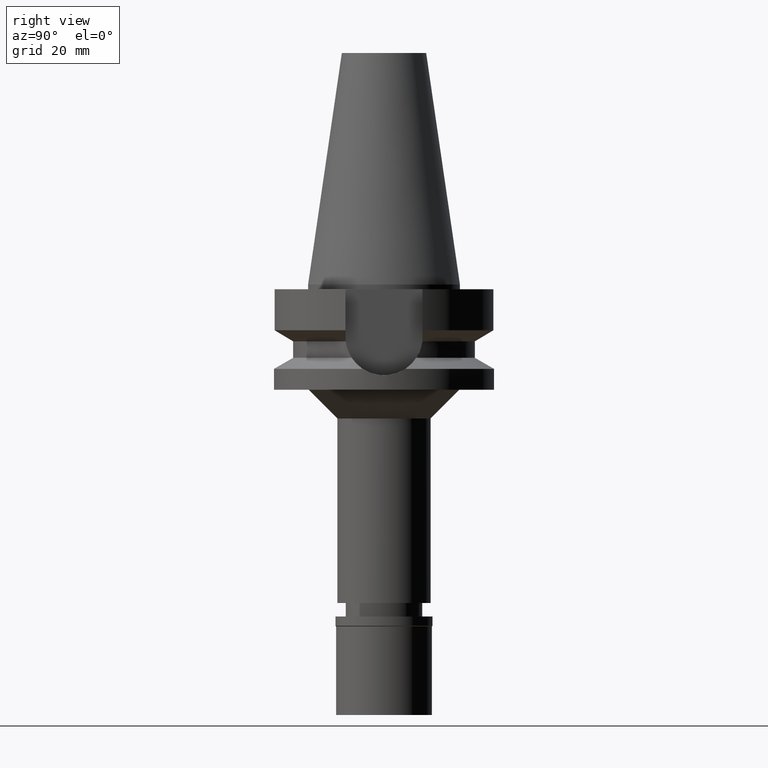
[diagram: clean part render]
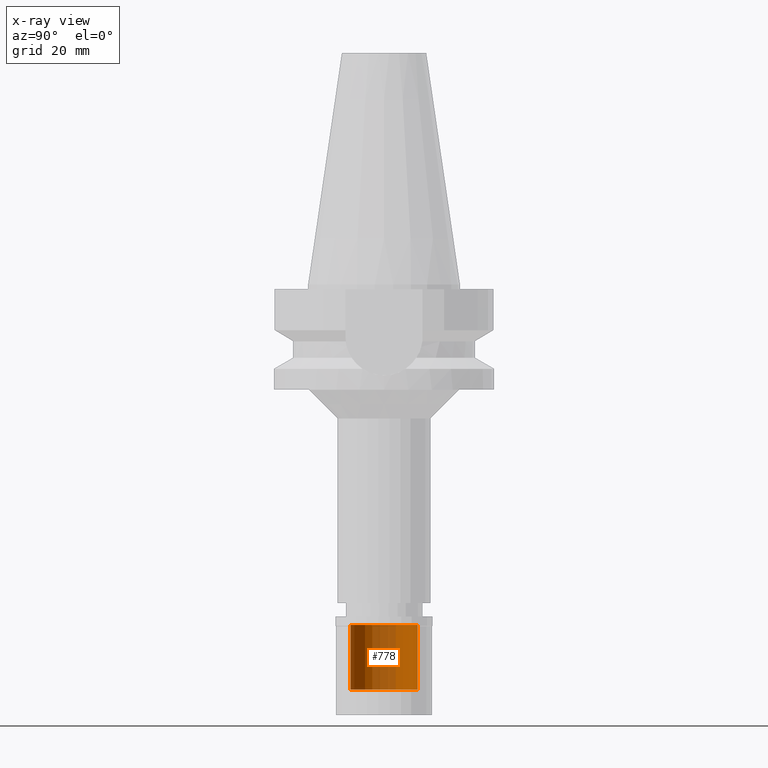
[diagram: x-ray — body ghosted, one internal face saturated and labeled with its STEP entity id]
A machine part, right view, then the same camera in x-ray: the body is ghosted and one INTERNAL B-rep face — a face not visible from any outside direction — is saturated and labeled: STEP entity #778.
In plain terms, the highlighted cylindrical surface (edge-blend (fillet) strip) has radius 7 mm, axis along (0, 0, -1).
Its self-contained STEP definition (entity closure, byte-faithful):
#120 = ORIENTED_EDGE ( 'NONE', *, *, #1396, .T. ) ;
#159 = CARTESIAN_POINT ( 'NONE',  ( 0.0000000000000000000, -7.000000000000000000, -15.29999999999999893 ) ) ;
#304 = ORIENTED_EDGE ( 'NONE', *, *, #1766, .T. ) ;
#490 = AXIS2_PLACEMENT_3D ( 'NONE', #887, #595, #645 ) ;
#521 = EDGE_CURVE ( 'NONE', #2634, #819, #803, .T. ) ;
#540 = CARTESIAN_POINT ( 'NONE',  ( 0.0000000000000000000, 7.000000000000000000, -15.29999999999999893 ) ) ;
#558 = CYLINDRICAL_SURFACE ( 'NONE', #589, 7.000000000000000000 ) ;
#589 = AXIS2_PLACEMENT_3D ( 'NONE', #1295, #1060, #834 ) ;
#595 = DIRECTION ( 'NONE',  ( 0.0000000000000000000, 0.0000000000000000000, 1.000000000000000000 ) ) ;
#645 = DIRECTION ( 'NONE',  ( 0.0000000000000000000, 1.000000000000000000, 0.0000000000000000000 ) ) ;
#760 = CARTESIAN_POINT ( 'NONE',  ( 0.0000000000000000000, -7.000000000000000000, -15.29999999999999893 ) ) ;
#778 = ADVANCED_FACE ( 'NONE', ( #1309 ), #558, .F. ) ;
#803 = LINE ( 'NONE', #540, #1167 ) ;
#819 = VERTEX_POINT ( 'NONE', #1517 ) ;
#834 = DIRECTION ( 'NONE',  ( 0.0000000000000000000, -1.000000000000000000, 0.0000000000000000000 ) ) ;
#887 = CARTESIAN_POINT ( 'NONE',  ( 0.0000000000000000000, 0.0000000000000000000, -1.800000000000000044 ) ) ;
#916 = DIRECTION ( 'NONE',  ( 0.0000000000000000000, 0.0000000000000000000, -1.000000000000000000 ) ) ;
#1012 = CARTESIAN_POINT ( 'NONE',  ( 0.0000000000000000000, -7.000000000000000000, -1.800000000000000044 ) ) ;
#1014 = AXIS2_PLACEMENT_3D ( 'NONE', #3063, #916, #2821 ) ;
#1060 = DIRECTION ( 'NONE',  ( 0.0000000000000000000, 0.0000000000000000000, -1.000000000000000000 ) ) ;
#1167 = VECTOR ( 'NONE', #2912, 1000.000000000000000 ) ;
#1234 = DIRECTION ( 'NONE',  ( 0.0000000000000000000, 0.0000000000000000000, 1.000000000000000000 ) ) ;
#1295 = CARTESIAN_POINT ( 'NONE',  ( 0.0000000000000000000, 0.0000000000000000000, 0.0000000000000000000 ) ) ;
#1309 = FACE_OUTER_BOUND ( 'NONE', #2979, .T. ) ;
#1396 = EDGE_CURVE ( 'NONE', #2004, #2634, #1861, .T. ) ;
#1409 = EDGE_CURVE ( 'NONE', #2004, #2739, #1938, .T. ) ;
#1517 = CARTESIAN_POINT ( 'NONE',  ( 0.0000000000000000000, 7.000000000000000000, -1.800000000000000044 ) ) ;
#1667 = CIRCLE ( 'NONE', #490, 7.000000000000000000 ) ;
#1766 = EDGE_CURVE ( 'NONE', #819, #2739, #1667, .T. ) ;
#1861 = CIRCLE ( 'NONE', #1014, 7.000000000000000000 ) ;
#1938 = LINE ( 'NONE', #760, #2769 ) ;
#2004 = VERTEX_POINT ( 'NONE', #159 ) ;
#2182 = CARTESIAN_POINT ( 'NONE',  ( 0.0000000000000000000, 7.000000000000000000, -15.29999999999999893 ) ) ;
#2634 = VERTEX_POINT ( 'NONE', #2182 ) ;
#2739 = VERTEX_POINT ( 'NONE', #1012 ) ;
#2769 = VECTOR ( 'NONE', #1234, 1000.000000000000000 ) ;
#2817 = ORIENTED_EDGE ( 'NONE', *, *, #521, .T. ) ;
#2821 = DIRECTION ( 'NONE',  ( 0.0000000000000000000, -1.000000000000000000, 0.0000000000000000000 ) ) ;
#2912 = DIRECTION ( 'NONE',  ( 0.0000000000000000000, 0.0000000000000000000, 1.000000000000000000 ) ) ;
#2941 = ORIENTED_EDGE ( 'NONE', *, *, #1409, .F. ) ;
#2979 = EDGE_LOOP ( 'NONE', ( #304, #2941, #120, #2817 ) ) ;
#3063 = CARTESIAN_POINT ( 'NONE',  ( 0.0000000000000000000, 0.0000000000000000000, -15.29999999999999893 ) ) ;